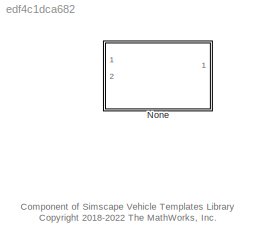
MODEL slx_edf4c1dca682
KIND library
CONFIG AbsTol = auto
CONFIG EnableMultiTasking = off
CONFIG FixedStep = auto
CONFIG MaxStep = auto
CONFIG MinStep = auto
CONFIG RelTol = 1e-3
CONFIG SampleTimeConstraint = Unconstrained
CONFIG SolverName = VariableStepAuto
CONFIG StartTime = 0.0
CONFIG StopTime = 10.0
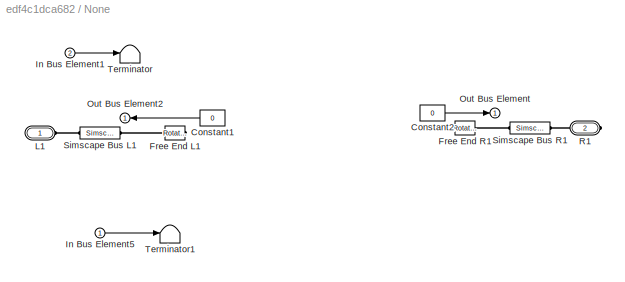
BLOCK [SubSystem] None
  Ports = [2, 1, 0, 0, 0, 1, 1]
  RequestExecContextInheritance = off
  Tag = PublishSubsystem
  VariantControl = Pedal
BLOCK [Constant] None/Constant1
  Value = 0
BLOCK [Constant] None/Constant2
  Value = 0
BLOCK [Reference] None/Free End L1  REF=fl_lib/Mechanical/Rotational Elements/Rotational Free End
  Ports = [0, 0, 0, 0, 0, 1]
  SourceBlock = fl_lib/Mechanical/Rotational Elements/Rotational Free End
  SourceProductBaseCode = PW,SS,VE
  SourceType = Rotational Free End
BLOCK [Reference] None/Free End R1  REF=fl_lib/Mechanical/Rotational Elements/Rotational Free End
  Ports = [0, 0, 0, 0, 0, 1]
  SourceBlock = fl_lib/Mechanical/Rotational Elements/Rotational Free End
  SourceProductBaseCode = PW,SS,VE
  SourceType = Rotational Free End
BLOCK [Inport] None/In Bus Element1
  Port = 2
BLOCK [Inport] None/In Bus Element5
BLOCK [PMIOPort] None/L1
  Side = Left
BLOCK [Outport] None/Out Bus Element
  VectorParamsAs1DForOutWhenUnconnected = off
BLOCK [Outport] None/Out Bus Element2
  VectorParamsAs1DForOutWhenUnconnected = off
BLOCK [PMIOPort] None/R1
  Port = 2
  Side = Right
BLOCK [SimscapeBus] None/Simscape Bus L1
  HierarchyStrings = Axle1D
  Ports = [0, 0, 0, 0, 0, 1, 1]
BLOCK [SimscapeBus] None/Simscape Bus R1
  HierarchyStrings = Axle1D
  Ports = [0, 0, 0, 0, 0, 1, 1]
BLOCK [Terminator] None/Terminator
BLOCK [Terminator] None/Terminator1
ANNOTATION (root): Component of Simscape Vehicle Templates Library <copyright redacted>
LINE None/Constant1:1 -> None/Out Bus Element2:1
LINE None/Constant2:1 -> None/Out Bus Element:1
LINE None/In Bus Element1:1 -> None/Terminator:1
LINE None/In Bus Element5:1 -> None/Terminator1:1
PLINE None/Free End L1:LConn1 -- None/Simscape Bus L1:LConn1
PLINE None/Free End R1:LConn1 -- None/Simscape Bus R1:LConn1
PLINE None/L1:RConn1 -- None/Simscape Bus L1:RConn1
PLINE None/R1:RConn1 -- None/Simscape Bus R1:RConn1
